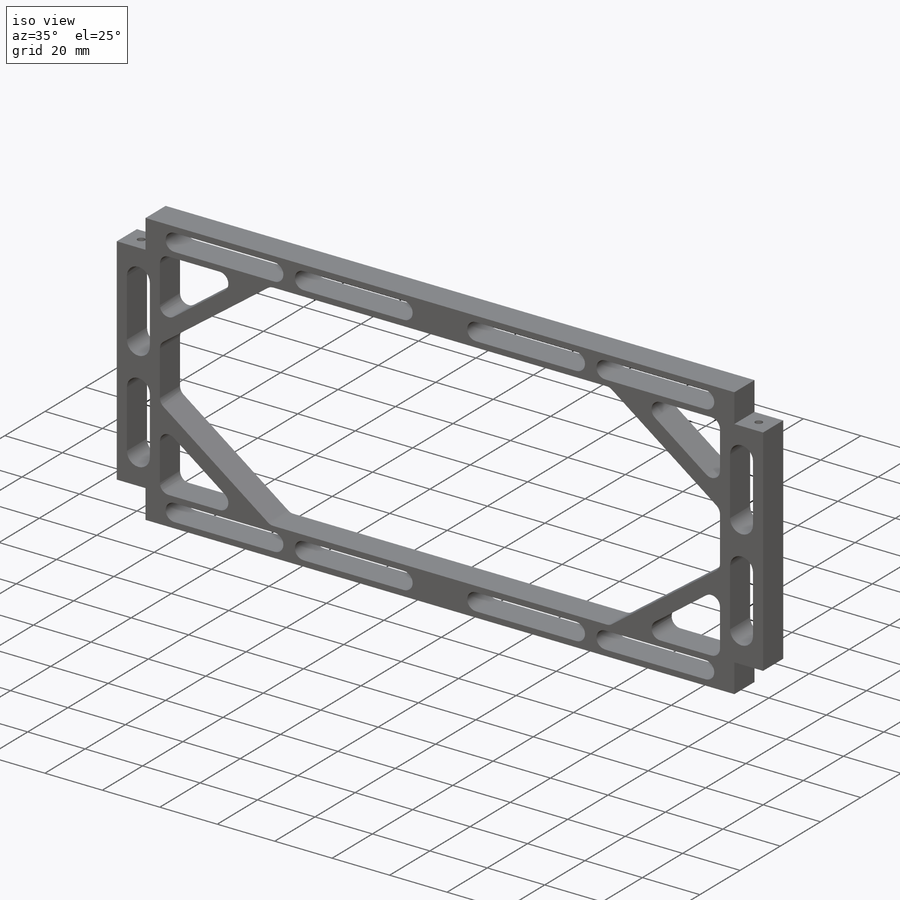
[diagram: iso view]
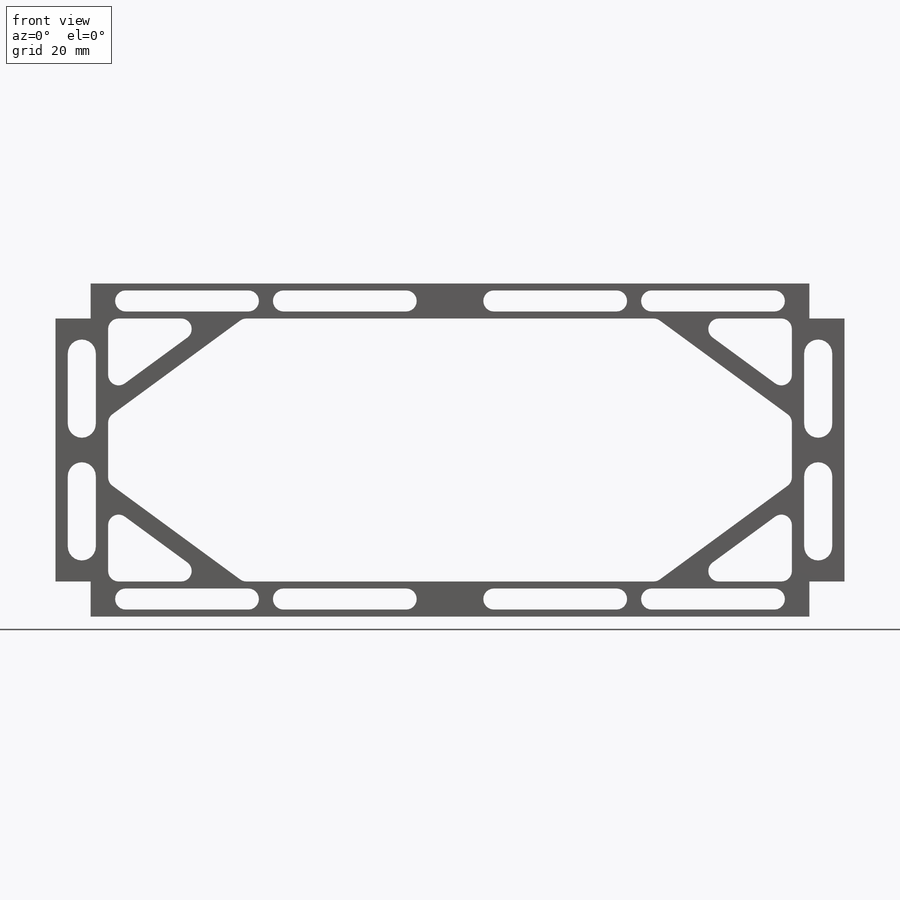
[diagram: front view]
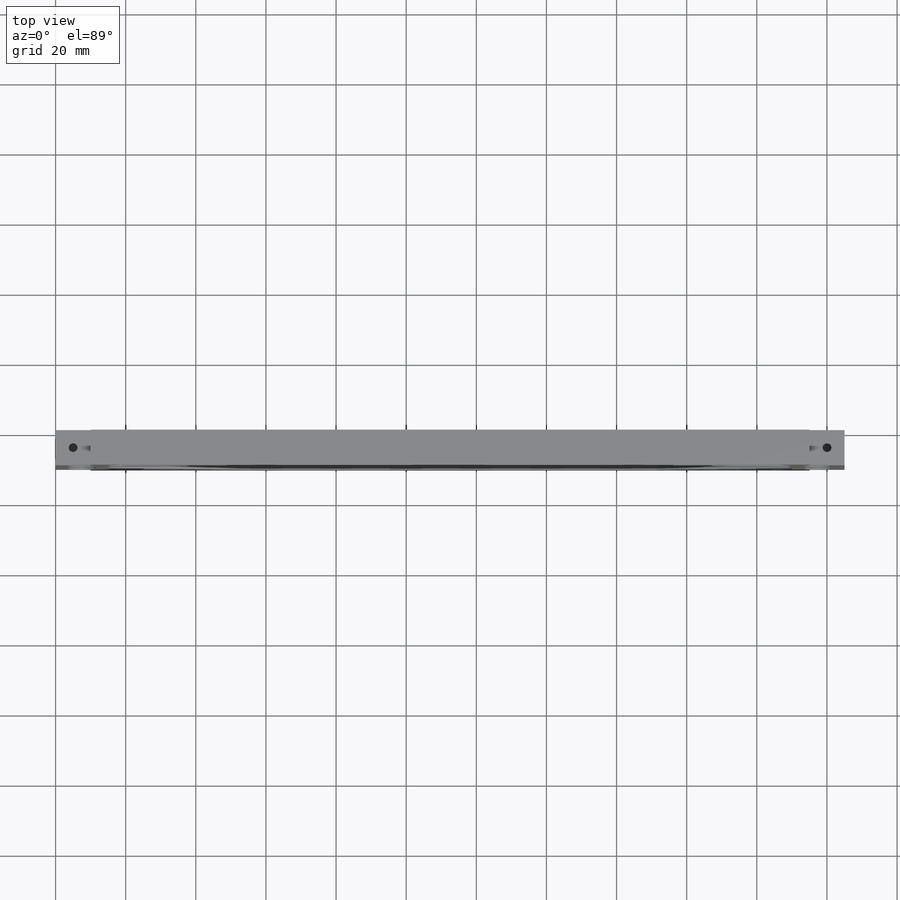
[diagram: top view]
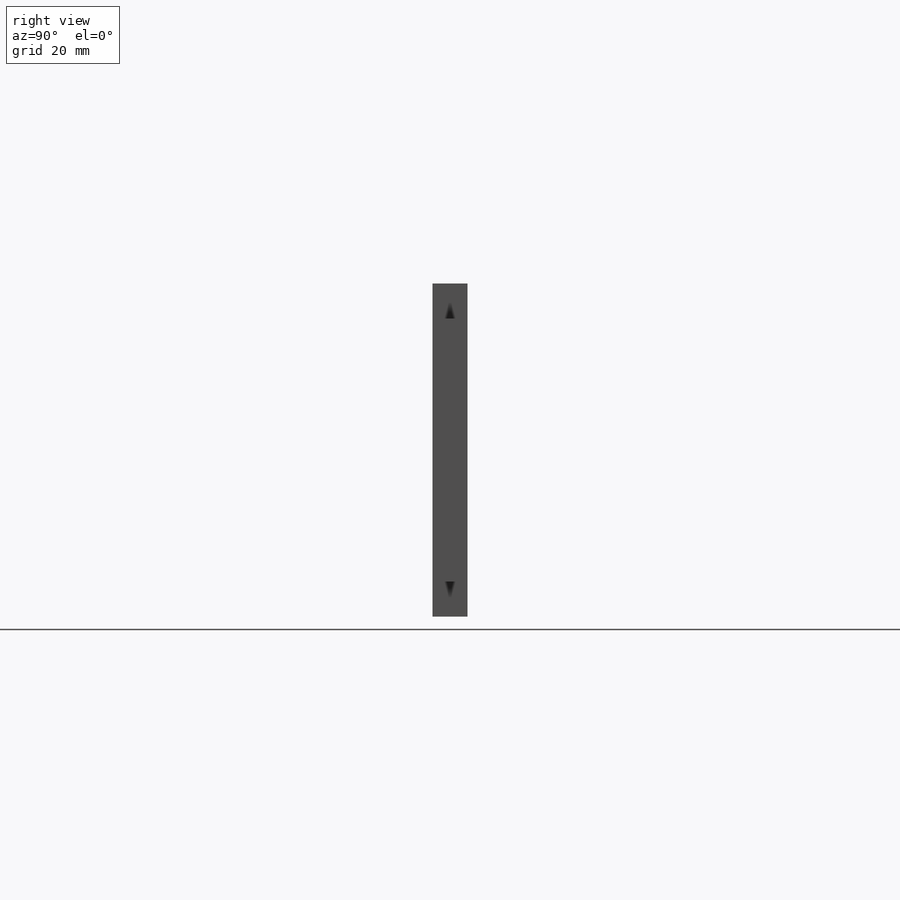
[diagram: right view]
SOLIDWORKS PART (.sldprt)
format: sldprt  version: not decoded by parser v0  size: 422,400 bytes
history: native  units: mm
features: sketch x3, thread x2, material x1, extrude x1, fillet x1, hole x1 (+12 scaffold rows collapsed)
feature tree (21):
  scaffold x12  (default folders/planes/origin — collapsed)
  material  "2014 Alloy"
  sketch  "Sketch1"  dims[c1.D1=95.0mm c1.D2=225.0mm c1.D3=10.0mm c1.D4=15.0mm c1.D5=10.0mm c1.D6=15.0mm c1.D7=30.0mm c1.D8=22.0mm c1.D9=5.0mm c1.D10=10.0mm c1.D11=~7.843403mm c2.D11=90.0deg c3.D11=10.0mm c3.D12=7.5mm c3.D13=20.0mm c3.D14=20.0mm c3.D15=10.0mm c3.D16=10.0mm c3.D19=35.0mm c3.D20=35.0mm c3.D21=10.0mm c3.D22=10.0mm c3.D23=35.0mm c3.D24=35.0mm c3.D25=10.0mm c3.D26=10.0mm c3.D27=5.0mm c3.D17=4.0mm c3.D18=4.0mm c3.D28=3.0mm c3.D29=3.0mm]
  extrude  "Boss-Extrude1"  Depth=10mm
  fillet  "Fillet1"  Radius=3mm
  hole  "M3 Tapped Hole2"  Diameter=2.5mm Depth=15mm
  sketch  "Sketch5"  dims[c1.D1=7.5mm c1.D2=5.0mm c1.D3=5.0mm c2.D1=5.0mm]
  sketch  "Sketch4"  dims[hole-wizard template sketch: 50 standard entries collapsed; hole parameters above]
  thread  "Hole Thread3"  Diameter=8.608059mm  [1 undecoded]
  thread  "Hole Thread4"  Diameter=8.608059mm  [1 undecoded]
decode coverage: 8 of 8 modeling features carry decoded parameters
note: ~ marks probable driven/reference dimensions
note: 2 parameter values undecoded
note: suppression state not decoded; provenance and decode notes live in map.json
